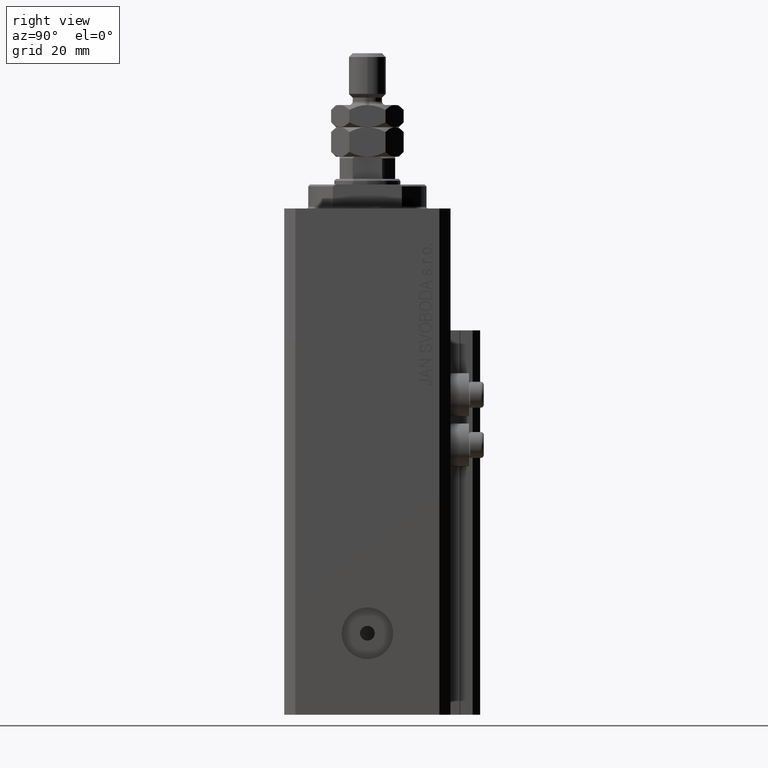
[diagram: clean part render]
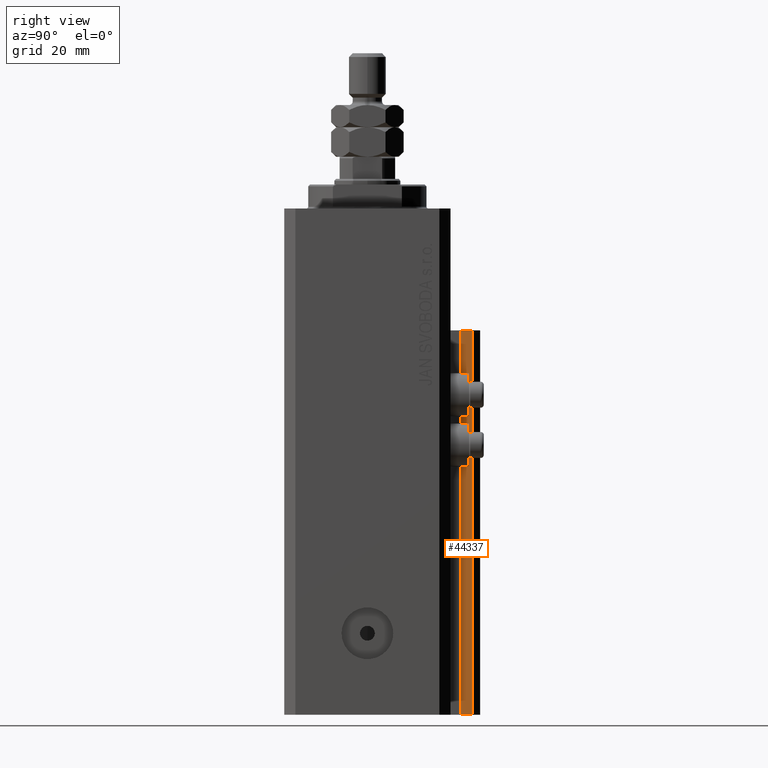
[diagram: same view with one face highlighted and labeled with its STEP entity id]
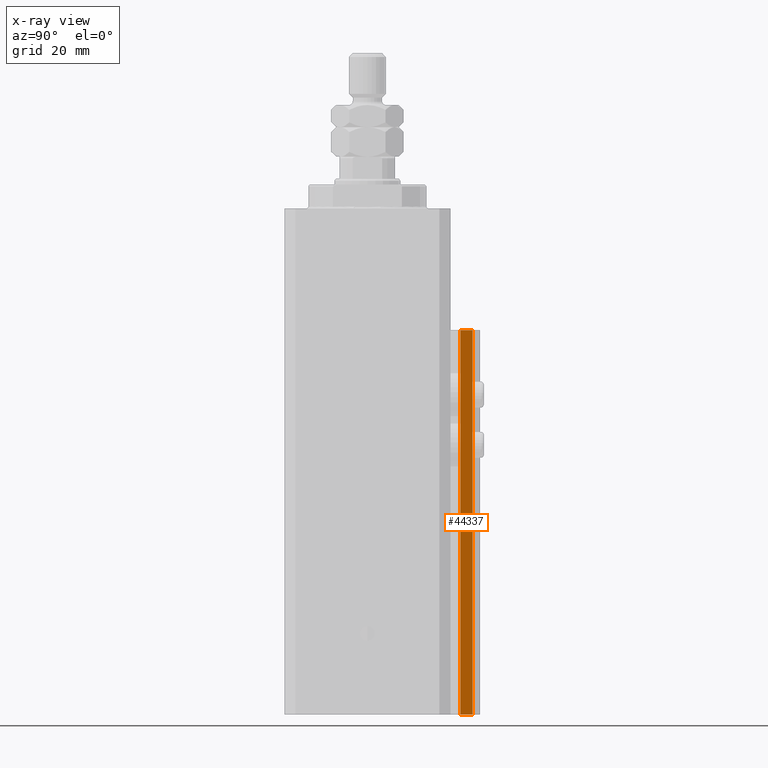
[diagram: x-ray of the same camera — body ghosted, the highlighted face saturated]
A machine part, right view. The second image highlights one B-rep face of the part: STEP entity #44337.
The next image is the same camera in x-ray: the body ghosted, the highlighted face saturated — about 0% of this face is hidden behind the body in this view.
In plain terms, the highlighted planar face has unit normal (1, 0, 0).
Its self-contained STEP definition (entity closure, byte-faithful):
#1133 = FACE_OUTER_BOUND ( 'NONE', #16416, .T. ) ;
#1275 = VECTOR ( 'NONE', #22247, 1000.000000000000000 ) ;
#1875 = CARTESIAN_POINT ( 'NONE',  ( 12.00000000000000178, 25.19999999999951257, -137.0000000000000000 ) ) ;
#3944 = DIRECTION ( 'NONE',  ( 0.000000000000000000, 1.000000000000000000, 0.000000000000000000 ) ) ;
#4103 = DIRECTION ( 'NONE',  ( 0.000000000000000000, 0.000000000000000000, 1.000000000000000000 ) ) ;
#4792 = EDGE_CURVE ( 'NONE', #37550, #10971, #30722, .T. ) ;
#5402 = ORIENTED_EDGE ( 'NONE', *, *, #4792, .F. ) ;
#5575 = DIRECTION ( 'NONE',  ( 1.000000000000000000, 0.000000000000000000, 0.000000000000000000 ) ) ;
#7202 = CARTESIAN_POINT ( 'NONE',  ( 12.00000000000000178, 28.49999999999950973, -137.0000000000000000 ) ) ;
#7625 = LINE ( 'NONE', #37717, #41608 ) ;
#8803 = CARTESIAN_POINT ( 'NONE',  ( 12.00000000000000355, 25.19999999999951257, -137.0000000000000000 ) ) ;
#10166 = LINE ( 'NONE', #7202, #1275 ) ;
#10971 = VERTEX_POINT ( 'NONE', #17111 ) ;
#14002 = VERTEX_POINT ( 'NONE', #37584 ) ;
#16416 = EDGE_LOOP ( 'NONE', ( #42030, #5402, #33151, #26392 ) ) ;
#17111 = CARTESIAN_POINT ( 'NONE',  ( 12.00000000000000355, 25.19999999999951257, -33.00000000000000000 ) ) ;
#19598 = EDGE_CURVE ( 'NONE', #37550, #22875, #7625, .T. ) ;
#22247 = DIRECTION ( 'NONE',  ( 0.000000000000000000, 0.000000000000000000, 1.000000000000000000 ) ) ;
#22875 = VERTEX_POINT ( 'NONE', #41063 ) ;
#26392 = ORIENTED_EDGE ( 'NONE', *, *, #29478, .T. ) ;
#27744 = LINE ( 'NONE', #38590, #34484 ) ;
#29478 = EDGE_CURVE ( 'NONE', #22875, #14002, #10166, .T. ) ;
#30722 = LINE ( 'NONE', #45753, #44190 ) ;
#33151 = ORIENTED_EDGE ( 'NONE', *, *, #19598, .T. ) ;
#34484 = VECTOR ( 'NONE', #39082, 1000.000000000000000 ) ;
#35171 = PLANE ( 'NONE',  #39410 ) ;
#36993 = EDGE_CURVE ( 'NONE', #10971, #14002, #27744, .T. ) ;
#37550 = VERTEX_POINT ( 'NONE', #8803 ) ;
#37584 = CARTESIAN_POINT ( 'NONE',  ( 12.00000000000000178, 28.49999999999950973, -33.00000000000000000 ) ) ;
#37717 = CARTESIAN_POINT ( 'NONE',  ( 12.00000000000000178, 25.19999999999951257, -137.0000000000000000 ) ) ;
#38380 = DIRECTION ( 'NONE',  ( 0.000000000000000000, 0.000000000000000000, -1.000000000000000000 ) ) ;
#38590 = CARTESIAN_POINT ( 'NONE',  ( 12.00000000000000178, 25.19999999999951257, -33.00000000000000000 ) ) ;
#39082 = DIRECTION ( 'NONE',  ( 0.000000000000000000, 1.000000000000000000, 0.000000000000000000 ) ) ;
#39410 = AXIS2_PLACEMENT_3D ( 'NONE', #1875, #5575, #38380 ) ;
#41063 = CARTESIAN_POINT ( 'NONE',  ( 12.00000000000000178, 28.49999999999950973, -137.0000000000000000 ) ) ;
#41608 = VECTOR ( 'NONE', #3944, 1000.000000000000000 ) ;
#42030 = ORIENTED_EDGE ( 'NONE', *, *, #36993, .F. ) ;
#44190 = VECTOR ( 'NONE', #4103, 1000.000000000000000 ) ;
#44337 = ADVANCED_FACE ( 'NONE', ( #1133 ), #35171, .T. ) ;
#45753 = CARTESIAN_POINT ( 'NONE',  ( 12.00000000000000355, 25.19999999999951257, -137.0000000000000000 ) ) ;